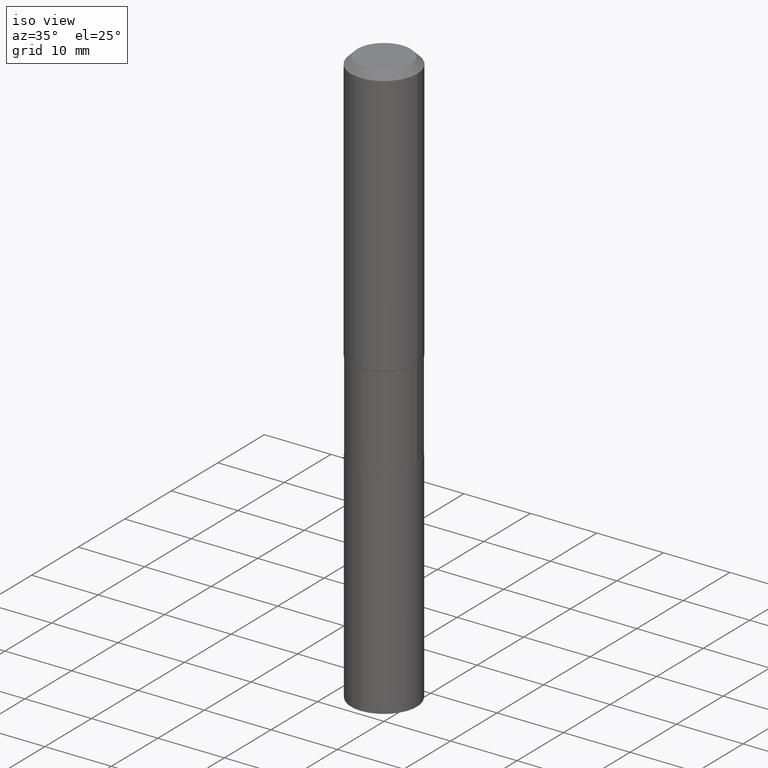
[diagram: clean part render]
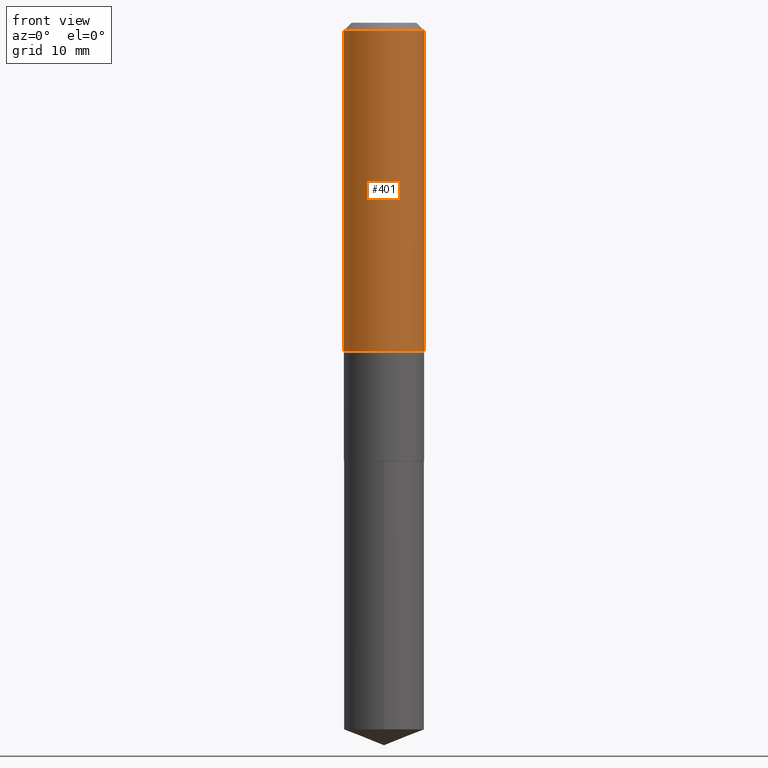
[diagram: tour spotlight — one face highlighted and labeled with its STEP entity id]
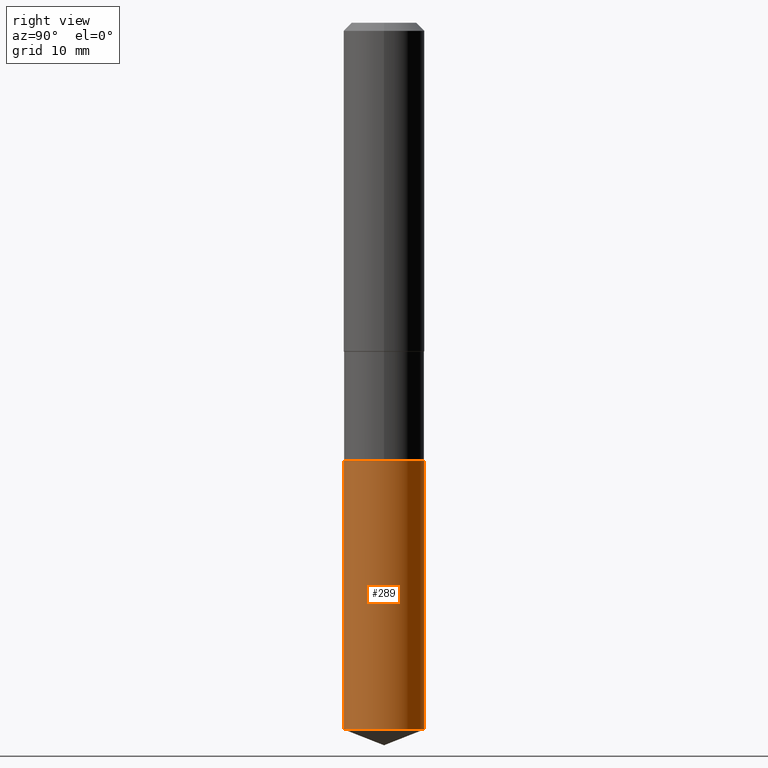
[diagram: tour spotlight — one face highlighted and labeled with its STEP entity id]
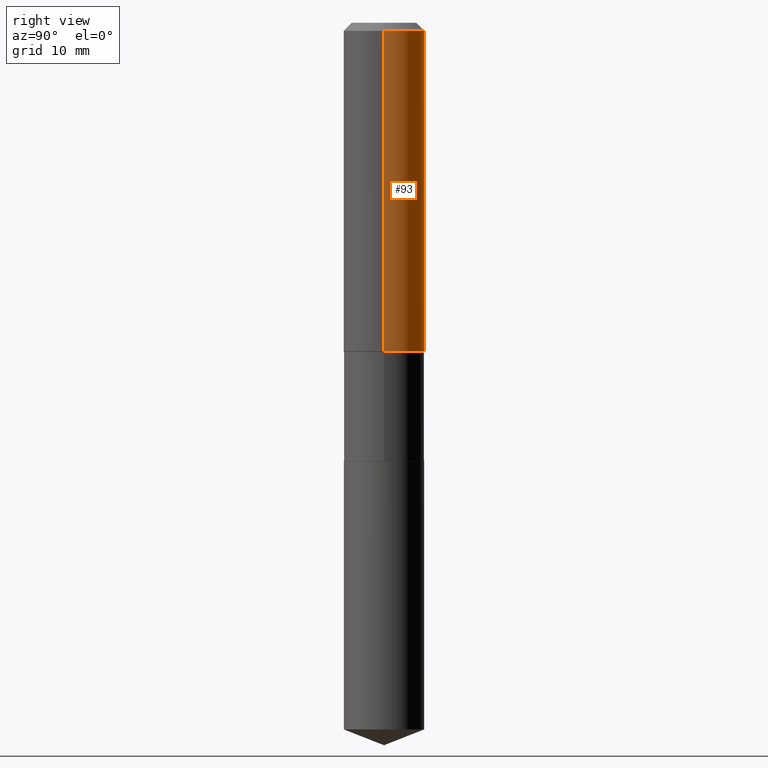
[diagram: tour spotlight — one face highlighted and labeled with its STEP entity id]
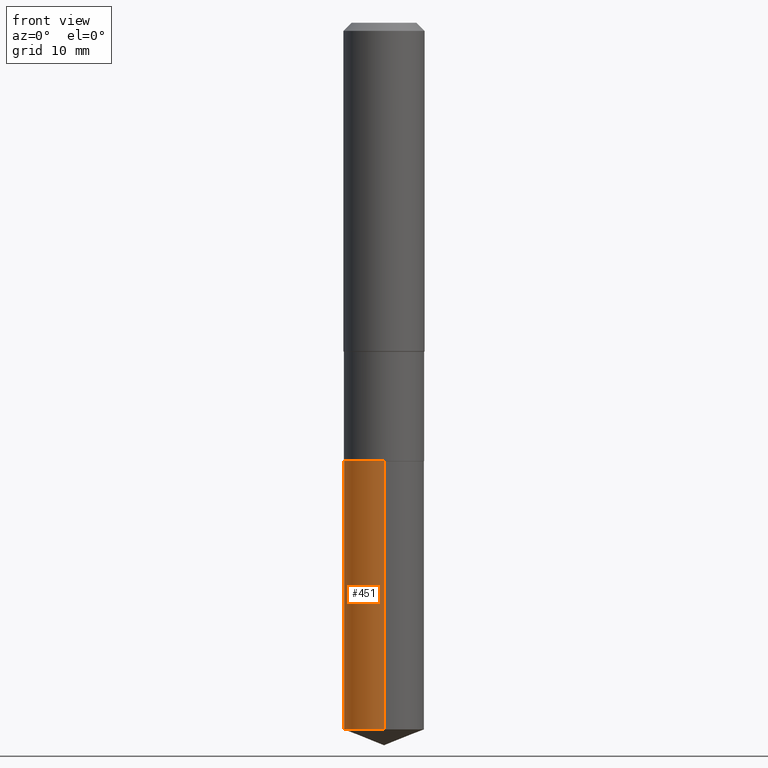
[diagram: tour spotlight — one face highlighted and labeled with its STEP entity id]
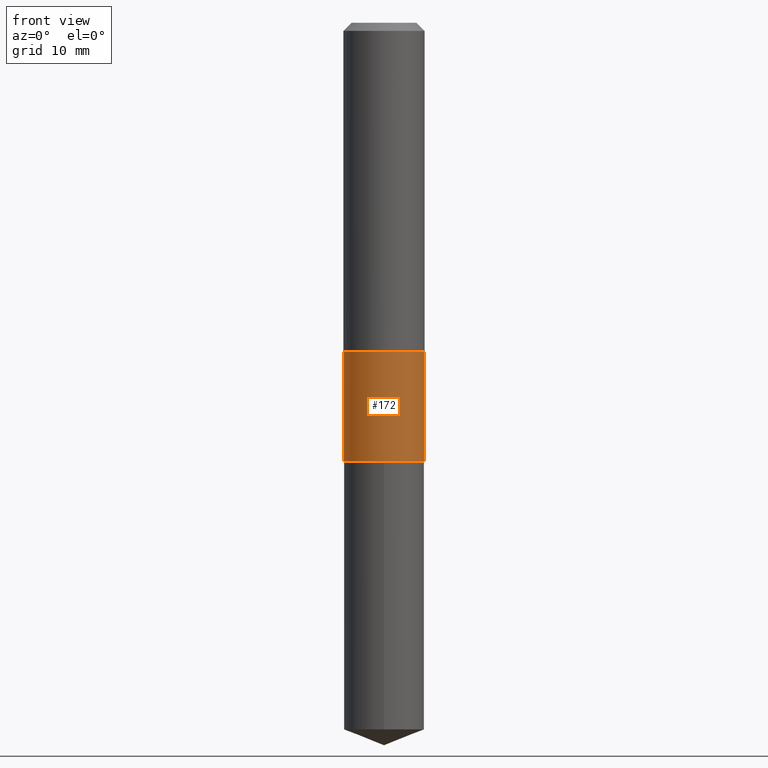
[diagram: tour spotlight — one face highlighted and labeled with its STEP entity id]
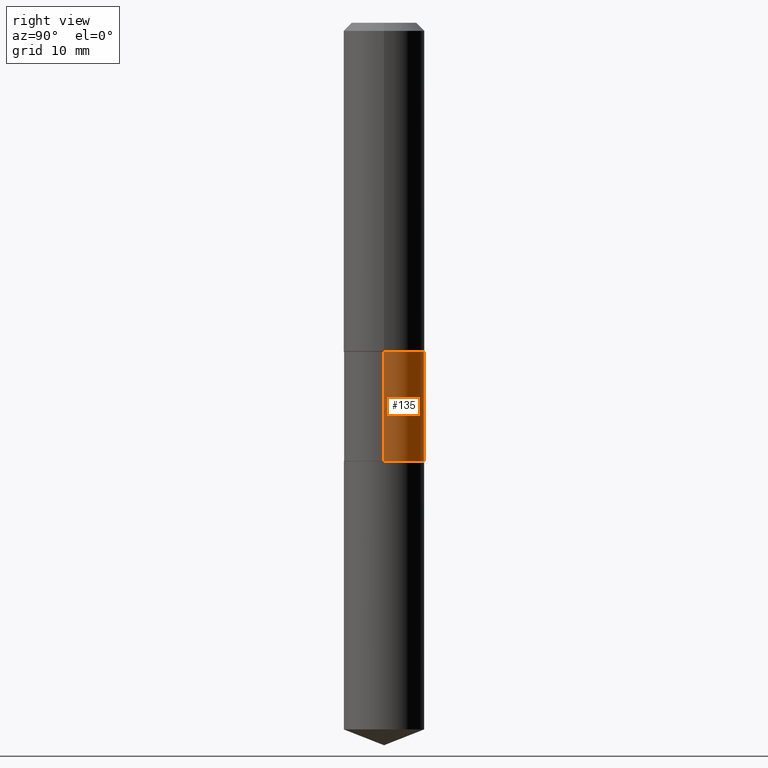
[diagram: tour spotlight — one face highlighted and labeled with its STEP entity id]
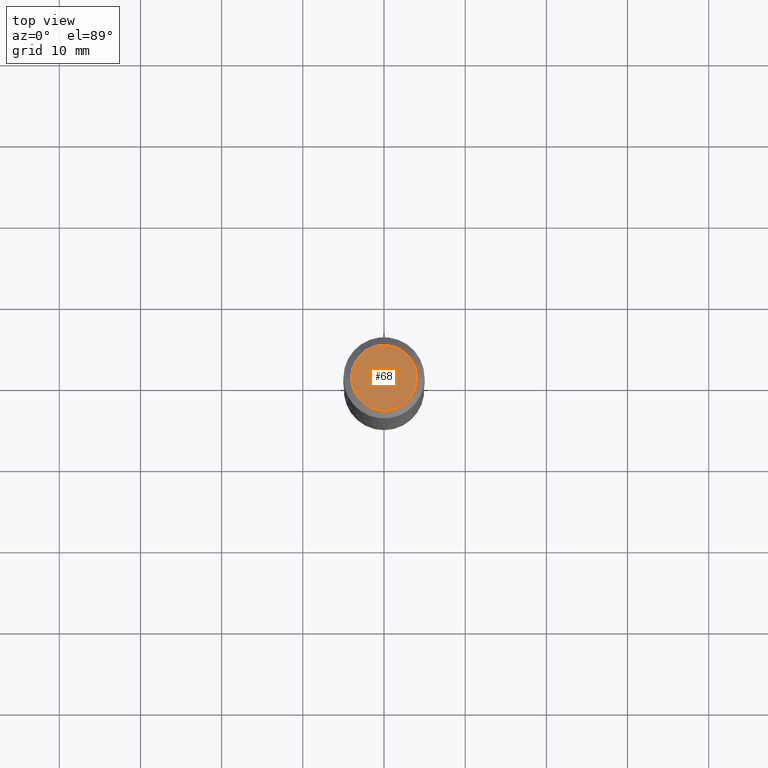
[diagram: tour spotlight — one face highlighted and labeled with its STEP entity id]
A machine part: a face-by-face anatomy tour. The part has 17 B-rep faces; the first image is the clean iso view, then the 7 largest visible faces are spotlighted one at a time (largest first), each with its STEP entity span.

Face 1 — front view, entity #401. In plain terms, the highlighted cylindrical surface (partial cylindrical patch) has radius 5 mm, axis along (-0, 0, 1).
Definition (entity closure, byte-faithful):
#1 = EDGE_CURVE ( 'NONE', #280, #487, #127, .T. ) ;
#9 = DIRECTION ( 'NONE',  ( -2.445468806185136597E-29, 3.491481338843145583E-15, 1.000000000000000000 ) ) ;
#17 = DIRECTION ( 'NONE',  ( -2.445468806185136597E-29, 3.491481338843145583E-15, 1.000000000000000000 ) ) ;
#45 = CARTESIAN_POINT ( 'NONE',  ( -0.1968500000000002192, -4.163400971500313642E-15, -1.593049999999999633 ) ) ;
#58 = CARTESIAN_POINT ( 'NONE',  ( 0.1968500000000000250, -1.512055823412797189E-15, -0.03937000000000029365 ) ) ;
#69 = ORIENTED_EDGE ( 'NONE', *, *, #1, .F. ) ;
#73 = EDGE_CURVE ( 'NONE', #386, #487, #371, .T. ) ;
#85 = CARTESIAN_POINT ( 'NONE',  ( -0.1968500000000000250, -1.451078608233405323E-15, -0.03937000000000029365 ) ) ;
#112 = ORIENTED_EDGE ( 'NONE', *, *, #148, .F. ) ;
#113 = VECTOR ( 'NONE', #156, 39.37007874015748143 ) ;
#127 = CIRCLE ( 'NONE', #443, 0.1968500000000000250 ) ;
#134 = ORIENTED_EDGE ( 'NONE', *, *, #73, .T. ) ;
#140 = DIRECTION ( 'NONE',  ( 1.000000000000000000, -6.982962677686265922E-15, 0.000000000000000000 ) ) ;
#148 = EDGE_CURVE ( 'NONE', #327, #280, #290, .T. ) ;
#153 = CARTESIAN_POINT ( 'NONE',  ( 9.627810689950954155E-31, -1.374596203102556547E-16, -0.03937000000000029365 ) ) ;
#154 = FACE_OUTER_BOUND ( 'NONE', #315, .T. ) ;
#156 = DIRECTION ( 'NONE',  ( -2.445468806185136877E-29, 3.491481338843145188E-15, 1.000000000000000000 ) ) ;
#162 = CARTESIAN_POINT ( 'NONE',  ( 0.000000000000000000, 0.000000000000000000, 0.000000000000000000 ) ) ;
#193 = ORIENTED_EDGE ( 'NONE', *, *, #432, .T. ) ;
#195 = AXIS2_PLACEMENT_3D ( 'NONE', #162, #9, #459 ) ;
#196 = CARTESIAN_POINT ( 'NONE',  ( 0.1968500000000001082, -1.374596203102542397E-15, 9.598753983154305062E-30 ) ) ;
#210 = CARTESIAN_POINT ( 'NONE',  ( 3.895754081693231081E-29, -5.562104346844071429E-15, -1.593049999999999633 ) ) ;
#226 = CARTESIAN_POINT ( 'NONE',  ( -0.1968500000000001082, 1.398703375343757985E-15, -9.682923725166787881E-30 ) ) ;
#228 = CIRCLE ( 'NONE', #422, 0.1968500000000002192 ) ;
#229 = CYLINDRICAL_SURFACE ( 'NONE', #195, 0.1968500000000001082 ) ;
#258 = DIRECTION ( 'NONE',  ( -2.445468806185136597E-29, 3.491481338843145583E-15, 1.000000000000000000 ) ) ;
#280 = VERTEX_POINT ( 'NONE', #85 ) ;
#286 = VECTOR ( 'NONE', #447, 39.37007874015748143 ) ;
#290 = LINE ( 'NONE', #226, #286 ) ;
#295 = DIRECTION ( 'NONE',  ( 1.000000000000000000, -6.982962677686265922E-15, 0.000000000000000000 ) ) ;
#315 = EDGE_LOOP ( 'NONE', ( #112, #193, #134, #69 ) ) ;
#327 = VERTEX_POINT ( 'NONE', #45 ) ;
#369 = CARTESIAN_POINT ( 'NONE',  ( 0.1968500000000002192, -6.936700549946615404E-15, -1.593049999999999633 ) ) ;
#371 = LINE ( 'NONE', #196, #113 ) ;
#386 = VERTEX_POINT ( 'NONE', #369 ) ;
#401 = ADVANCED_FACE ( 'NONE', ( #154 ), #229, .T. ) ;
#422 = AXIS2_PLACEMENT_3D ( 'NONE', #210, #17, #140 ) ;
#432 = EDGE_CURVE ( 'NONE', #327, #386, #228, .T. ) ;
#443 = AXIS2_PLACEMENT_3D ( 'NONE', #153, #258, #295 ) ;
#447 = DIRECTION ( 'NONE',  ( -2.445468806185136877E-29, 3.491481338843145188E-15, 1.000000000000000000 ) ) ;
#459 = DIRECTION ( 'NONE',  ( 1.000000000000000000, -6.982962677686266711E-15, 4.876176775795935793E-29 ) ) ;
#487 = VERTEX_POINT ( 'NONE', #58 ) ;

Face 2 — right view, entity #289. In plain terms, the highlighted cylindrical surface (partial cylindrical patch) has radius 4.9505 mm, axis along (-0, 0, 1).
Definition (entity closure, byte-faithful):
#34 = VERTEX_POINT ( 'NONE', #199 ) ;
#35 = ORIENTED_EDGE ( 'NONE', *, *, #167, .F. ) ;
#51 = DIRECTION ( 'NONE',  ( -2.445600057802036841E-29, 3.491293379057366203E-15, 1.000000000000000000 ) ) ;
#56 = ORIENTED_EDGE ( 'NONE', *, *, #313, .T. ) ;
#70 = VECTOR ( 'NONE', #267, 39.37007874015748143 ) ;
#81 = CARTESIAN_POINT ( 'NONE',  ( -1.360979425881001224E-15, -0.1949000000000074007, -2.125899999999999235 ) ) ;
#82 = CARTESIAN_POINT ( 'NONE',  ( 5.198822135068982087E-29, -7.422540178246643119E-15, -2.125899999999999679 ) ) ;
#95 = VERTEX_POINT ( 'NONE', #416 ) ;
#116 = DIRECTION ( 'NONE',  ( -2.445600057802036841E-29, 3.491293379057366203E-15, 1.000000000000000000 ) ) ;
#121 = CARTESIAN_POINT ( 'NONE',  ( 1.384847791996486861E-15, 0.1948999999999925792, -2.125900000000000567 ) ) ;
#132 = LINE ( 'NONE', #81, #213 ) ;
#150 = AXIS2_PLACEMENT_3D ( 'NONE', #441, #116, #257 ) ;
#167 = EDGE_CURVE ( 'NONE', #484, #95, #352, .T. ) ;
#199 = CARTESIAN_POINT ( 'NONE',  ( -1.360979425880969472E-15, -0.1949000000000119248, -3.427126848302648021 ) ) ;
#202 = DIRECTION ( 'NONE',  ( -6.982962677686266711E-15, -1.000000000000000000, 2.803332984776052637E-15 ) ) ;
#213 = VECTOR ( 'NONE', #266, 39.37007874015748143 ) ;
#224 = VERTEX_POINT ( 'NONE', #372 ) ;
#232 = DIRECTION ( 'NONE',  ( -6.982962677686266711E-15, -1.000000000000000000, 2.803332984776052637E-15 ) ) ;
#237 = FACE_OUTER_BOUND ( 'NONE', #287, .T. ) ;
#250 = ORIENTED_EDGE ( 'NONE', *, *, #413, .F. ) ;
#257 = DIRECTION ( 'NONE',  ( -6.982962677686266711E-15, -1.000000000000000000, 2.803332984776052637E-15 ) ) ;
#260 = CARTESIAN_POINT ( 'NONE',  ( 8.381102590491500625E-29, -1.196550485837736517E-14, -3.427126848302648465 ) ) ;
#266 = DIRECTION ( 'NONE',  ( -2.445600057802036841E-29, 3.491293379057366203E-15, 1.000000000000000000 ) ) ;
#267 = DIRECTION ( 'NONE',  ( -2.445600057802036841E-29, 3.491293379057366203E-15, 1.000000000000000000 ) ) ;
#287 = EDGE_LOOP ( 'NONE', ( #466, #56, #35, #250 ) ) ;
#289 = ADVANCED_FACE ( 'NONE', ( #237 ), #378, .T. ) ;
#313 = EDGE_CURVE ( 'NONE', #224, #95, #460, .T. ) ;
#336 = EDGE_CURVE ( 'NONE', #34, #224, #482, .T. ) ;
#339 = AXIS2_PLACEMENT_3D ( 'NONE', #260, #408, #232 ) ;
#346 = CARTESIAN_POINT ( 'NONE',  ( -1.360979425881001224E-15, -0.1949000000000074007, -2.125899999999999235 ) ) ;
#352 = CIRCLE ( 'NONE', #150, 0.1948999999999999899 ) ;
#372 = CARTESIAN_POINT ( 'NONE',  ( 1.384847791996518810E-15, 0.1948999999999880550, -3.427126848302648909 ) ) ;
#378 = CYLINDRICAL_SURFACE ( 'NONE', #383, 0.1948999999999999899 ) ;
#383 = AXIS2_PLACEMENT_3D ( 'NONE', #82, #51, #202 ) ;
#408 = DIRECTION ( 'NONE',  ( -2.445600057802036841E-29, 3.491293379057366203E-15, 1.000000000000000000 ) ) ;
#413 = EDGE_CURVE ( 'NONE', #34, #484, #132, .T. ) ;
#416 = CARTESIAN_POINT ( 'NONE',  ( 1.384847791996518810E-15, 0.1948999999999925792, -2.125900000000000567 ) ) ;
#441 = CARTESIAN_POINT ( 'NONE',  ( 5.198822135068982087E-29, -7.422540178246643119E-15, -2.125899999999999679 ) ) ;
#460 = LINE ( 'NONE', #121, #70 ) ;
#466 = ORIENTED_EDGE ( 'NONE', *, *, #336, .T. ) ;
#482 = CIRCLE ( 'NONE', #339, 0.1948999999999999899 ) ;
#484 = VERTEX_POINT ( 'NONE', #346 ) ;

Face 3 — right view, entity #93. In plain terms, the highlighted cylindrical surface (partial cylindrical patch) has radius 5 mm, axis along (-0, 0, 1).
Definition (entity closure, byte-faithful):
#7 = EDGE_CURVE ( 'NONE', #487, #280, #344, .T. ) ;
#11 = AXIS2_PLACEMENT_3D ( 'NONE', #171, #307, #15 ) ;
#15 = DIRECTION ( 'NONE',  ( 1.000000000000000000, -6.982962677686265922E-15, 0.000000000000000000 ) ) ;
#45 = CARTESIAN_POINT ( 'NONE',  ( -0.1968500000000002192, -4.163400971500313642E-15, -1.593049999999999633 ) ) ;
#49 = AXIS2_PLACEMENT_3D ( 'NONE', #231, #452, #373 ) ;
#58 = CARTESIAN_POINT ( 'NONE',  ( 0.1968500000000000250, -1.512055823412797189E-15, -0.03937000000000029365 ) ) ;
#73 = EDGE_CURVE ( 'NONE', #386, #487, #371, .T. ) ;
#85 = CARTESIAN_POINT ( 'NONE',  ( -0.1968500000000000250, -1.451078608233405323E-15, -0.03937000000000029365 ) ) ;
#87 = CYLINDRICAL_SURFACE ( 'NONE', #296, 0.1968500000000001082 ) ;
#93 = ADVANCED_FACE ( 'NONE', ( #282 ), #87, .T. ) ;
#113 = VECTOR ( 'NONE', #156, 39.37007874015748143 ) ;
#115 = ORIENTED_EDGE ( 'NONE', *, *, #485, .T. ) ;
#141 = ORIENTED_EDGE ( 'NONE', *, *, #73, .F. ) ;
#148 = EDGE_CURVE ( 'NONE', #327, #280, #290, .T. ) ;
#156 = DIRECTION ( 'NONE',  ( -2.445468806185136877E-29, 3.491481338843145188E-15, 1.000000000000000000 ) ) ;
#171 = CARTESIAN_POINT ( 'NONE',  ( 3.895754081693231081E-29, -5.562104346844071429E-15, -1.593049999999999633 ) ) ;
#196 = CARTESIAN_POINT ( 'NONE',  ( 0.1968500000000001082, -1.374596203102542397E-15, 9.598753983154305062E-30 ) ) ;
#226 = CARTESIAN_POINT ( 'NONE',  ( -0.1968500000000001082, 1.398703375343757985E-15, -9.682923725166787881E-30 ) ) ;
#231 = CARTESIAN_POINT ( 'NONE',  ( 9.627810689950954155E-31, -1.374596203102556547E-16, -0.03937000000000029365 ) ) ;
#236 = CIRCLE ( 'NONE', #11, 0.1968500000000002192 ) ;
#280 = VERTEX_POINT ( 'NONE', #85 ) ;
#282 = FACE_OUTER_BOUND ( 'NONE', #285, .T. ) ;
#285 = EDGE_LOOP ( 'NONE', ( #115, #429, #308, #141 ) ) ;
#286 = VECTOR ( 'NONE', #447, 39.37007874015748143 ) ;
#290 = LINE ( 'NONE', #226, #286 ) ;
#296 = AXIS2_PLACEMENT_3D ( 'NONE', #347, #395, #438 ) ;
#307 = DIRECTION ( 'NONE',  ( -2.445468806185136597E-29, 3.491481338843145583E-15, 1.000000000000000000 ) ) ;
#308 = ORIENTED_EDGE ( 'NONE', *, *, #7, .F. ) ;
#327 = VERTEX_POINT ( 'NONE', #45 ) ;
#344 = CIRCLE ( 'NONE', #49, 0.1968500000000000250 ) ;
#347 = CARTESIAN_POINT ( 'NONE',  ( 0.000000000000000000, 0.000000000000000000, 0.000000000000000000 ) ) ;
#369 = CARTESIAN_POINT ( 'NONE',  ( 0.1968500000000002192, -6.936700549946615404E-15, -1.593049999999999633 ) ) ;
#371 = LINE ( 'NONE', #196, #113 ) ;
#373 = DIRECTION ( 'NONE',  ( 1.000000000000000000, -6.982962677686265922E-15, 0.000000000000000000 ) ) ;
#386 = VERTEX_POINT ( 'NONE', #369 ) ;
#395 = DIRECTION ( 'NONE',  ( -2.445468806185136597E-29, 3.491481338843145583E-15, 1.000000000000000000 ) ) ;
#429 = ORIENTED_EDGE ( 'NONE', *, *, #148, .T. ) ;
#438 = DIRECTION ( 'NONE',  ( 1.000000000000000000, -6.982962677686266711E-15, 4.876176775795935793E-29 ) ) ;
#447 = DIRECTION ( 'NONE',  ( -2.445468806185136877E-29, 3.491481338843145188E-15, 1.000000000000000000 ) ) ;
#452 = DIRECTION ( 'NONE',  ( -2.445468806185136597E-29, 3.491481338843145583E-15, 1.000000000000000000 ) ) ;
#485 = EDGE_CURVE ( 'NONE', #386, #327, #236, .T. ) ;
#487 = VERTEX_POINT ( 'NONE', #58 ) ;

Face 4 — front view, entity #451. In plain terms, the highlighted cylindrical surface (partial cylindrical patch) has radius 4.9505 mm, axis along (-0, 0, 1).
Definition (entity closure, byte-faithful):
#6 = AXIS2_PLACEMENT_3D ( 'NONE', #312, #380, #207 ) ;
#23 = DIRECTION ( 'NONE',  ( -6.982962677686266711E-15, -1.000000000000000000, 2.803332984776052637E-15 ) ) ;
#34 = VERTEX_POINT ( 'NONE', #199 ) ;
#70 = VECTOR ( 'NONE', #267, 39.37007874015748143 ) ;
#81 = CARTESIAN_POINT ( 'NONE',  ( -1.360979425881001224E-15, -0.1949000000000074007, -2.125899999999999235 ) ) ;
#95 = VERTEX_POINT ( 'NONE', #416 ) ;
#98 = DIRECTION ( 'NONE',  ( -6.982962677686266711E-15, -1.000000000000000000, 2.803332984776052637E-15 ) ) ;
#119 = CIRCLE ( 'NONE', #6, 0.1948999999999999899 ) ;
#121 = CARTESIAN_POINT ( 'NONE',  ( 1.384847791996486861E-15, 0.1948999999999925792, -2.125900000000000567 ) ) ;
#132 = LINE ( 'NONE', #81, #213 ) ;
#147 = ORIENTED_EDGE ( 'NONE', *, *, #478, .F. ) ;
#149 = ORIENTED_EDGE ( 'NONE', *, *, #313, .F. ) ;
#157 = CYLINDRICAL_SURFACE ( 'NONE', #241, 0.1948999999999999899 ) ;
#178 = ORIENTED_EDGE ( 'NONE', *, *, #413, .T. ) ;
#181 = DIRECTION ( 'NONE',  ( -2.445600057802036841E-29, 3.491293379057366203E-15, 1.000000000000000000 ) ) ;
#199 = CARTESIAN_POINT ( 'NONE',  ( -1.360979425880969472E-15, -0.1949000000000119248, -3.427126848302648021 ) ) ;
#207 = DIRECTION ( 'NONE',  ( -6.982962677686266711E-15, -1.000000000000000000, 2.803332984776052637E-15 ) ) ;
#209 = ORIENTED_EDGE ( 'NONE', *, *, #420, .T. ) ;
#213 = VECTOR ( 'NONE', #266, 39.37007874015748143 ) ;
#224 = VERTEX_POINT ( 'NONE', #372 ) ;
#241 = AXIS2_PLACEMENT_3D ( 'NONE', #475, #181, #23 ) ;
#266 = DIRECTION ( 'NONE',  ( -2.445600057802036841E-29, 3.491293379057366203E-15, 1.000000000000000000 ) ) ;
#267 = DIRECTION ( 'NONE',  ( -2.445600057802036841E-29, 3.491293379057366203E-15, 1.000000000000000000 ) ) ;
#271 = EDGE_LOOP ( 'NONE', ( #149, #209, #178, #147 ) ) ;
#312 = CARTESIAN_POINT ( 'NONE',  ( 5.198822135068982087E-29, -7.422540178246643119E-15, -2.125899999999999679 ) ) ;
#313 = EDGE_CURVE ( 'NONE', #224, #95, #460, .T. ) ;
#319 = DIRECTION ( 'NONE',  ( -2.445600057802036841E-29, 3.491293379057366203E-15, 1.000000000000000000 ) ) ;
#346 = CARTESIAN_POINT ( 'NONE',  ( -1.360979425881001224E-15, -0.1949000000000074007, -2.125899999999999235 ) ) ;
#372 = CARTESIAN_POINT ( 'NONE',  ( 1.384847791996518810E-15, 0.1948999999999880550, -3.427126848302648909 ) ) ;
#380 = DIRECTION ( 'NONE',  ( -2.445600057802036841E-29, 3.491293379057366203E-15, 1.000000000000000000 ) ) ;
#413 = EDGE_CURVE ( 'NONE', #34, #484, #132, .T. ) ;
#416 = CARTESIAN_POINT ( 'NONE',  ( 1.384847791996518810E-15, 0.1948999999999925792, -2.125900000000000567 ) ) ;
#420 = EDGE_CURVE ( 'NONE', #224, #34, #463, .T. ) ;
#425 = CARTESIAN_POINT ( 'NONE',  ( 8.381102590491500625E-29, -1.196550485837736517E-14, -3.427126848302648465 ) ) ;
#439 = FACE_OUTER_BOUND ( 'NONE', #271, .T. ) ;
#451 = ADVANCED_FACE ( 'NONE', ( #439 ), #157, .T. ) ;
#460 = LINE ( 'NONE', #121, #70 ) ;
#463 = CIRCLE ( 'NONE', #489, 0.1948999999999999899 ) ;
#475 = CARTESIAN_POINT ( 'NONE',  ( 5.198822135068982087E-29, -7.422540178246643119E-15, -2.125899999999999679 ) ) ;
#478 = EDGE_CURVE ( 'NONE', #95, #484, #119, .T. ) ;
#484 = VERTEX_POINT ( 'NONE', #346 ) ;
#489 = AXIS2_PLACEMENT_3D ( 'NONE', #425, #319, #98 ) ;

Face 5 — front view, entity #172. In plain terms, the highlighted cylindrical surface (partial cylindrical patch) has radius 4.9505 mm, axis along (-0, 0, 1).
Definition (entity closure, byte-faithful):
#4 = DIRECTION ( 'NONE',  ( -2.445468806185136877E-29, 3.491481338843145188E-15, 1.000000000000000000 ) ) ;
#19 = AXIS2_PLACEMENT_3D ( 'NONE', #423, #474, #337 ) ;
#24 = VERTEX_POINT ( 'NONE', #122 ) ;
#47 = CARTESIAN_POINT ( 'NONE',  ( -0.1948999999999999344, 1.384847791996434796E-15, -9.587004490906808522E-30 ) ) ;
#63 = AXIS2_PLACEMENT_3D ( 'NONE', #283, #74, #434 ) ;
#74 = DIRECTION ( 'NONE',  ( -2.445468806185136597E-29, 3.491481338843145583E-15, 1.000000000000000000 ) ) ;
#102 = EDGE_CURVE ( 'NONE', #142, #388, #160, .T. ) ;
#122 = CARTESIAN_POINT ( 'NONE',  ( 0.1948999999999999067, -6.929892161335869568E-15, -1.594999999999999751 ) ) ;
#126 = DIRECTION ( 'NONE',  ( 1.000000000000000000, -6.982962677686267499E-15, 0.000000000000000000 ) ) ;
#130 = VECTOR ( 'NONE', #4, 39.37007874015748143 ) ;
#142 = VERTEX_POINT ( 'NONE', #403 ) ;
#160 = CIRCLE ( 'NONE', #19, 0.1948999999999999899 ) ;
#169 = VECTOR ( 'NONE', #414, 39.37007874015748143 ) ;
#172 = ADVANCED_FACE ( 'NONE', ( #217 ), #405, .T. ) ;
#217 = FACE_OUTER_BOUND ( 'NONE', #277, .T. ) ;
#219 = ORIENTED_EDGE ( 'NONE', *, *, #102, .T. ) ;
#252 = CARTESIAN_POINT ( 'NONE',  ( 0.1948999999999999899, -8.781773863458275496E-15, -2.125399999999999956 ) ) ;
#253 = ORIENTED_EDGE ( 'NONE', *, *, #262, .T. ) ;
#261 = CARTESIAN_POINT ( 'NONE',  ( 0.1948999999999999344, -1.360979425881052894E-15, 9.503668536026277414E-30 ) ) ;
#262 = EDGE_CURVE ( 'NONE', #388, #24, #332, .T. ) ;
#276 = VERTEX_POINT ( 'NONE', #449 ) ;
#277 = EDGE_LOOP ( 'NONE', ( #356, #219, #253, #381 ) ) ;
#283 = CARTESIAN_POINT ( 'NONE',  ( 0.000000000000000000, 0.000000000000000000, 0.000000000000000000 ) ) ;
#297 = AXIS2_PLACEMENT_3D ( 'NONE', #299, #409, #126 ) ;
#299 = CARTESIAN_POINT ( 'NONE',  ( 3.900522745865292334E-29, -5.568912735454817265E-15, -1.594999999999999751 ) ) ;
#332 = LINE ( 'NONE', #261, #169 ) ;
#337 = DIRECTION ( 'NONE',  ( 1.000000000000000000, -6.982962677686269866E-15, 0.000000000000000000 ) ) ;
#343 = EDGE_CURVE ( 'NONE', #142, #276, #375, .T. ) ;
#356 = ORIENTED_EDGE ( 'NONE', *, *, #343, .F. ) ;
#375 = LINE ( 'NONE', #47, #130 ) ;
#381 = ORIENTED_EDGE ( 'NONE', *, *, #402, .F. ) ;
#388 = VERTEX_POINT ( 'NONE', #252 ) ;
#390 = CIRCLE ( 'NONE', #297, 0.1948999999999999067 ) ;
#402 = EDGE_CURVE ( 'NONE', #276, #24, #390, .T. ) ;
#403 = CARTESIAN_POINT ( 'NONE',  ( -0.1948999999999999899, -5.110005794519583264E-15, -2.125399999999999956 ) ) ;
#405 = CYLINDRICAL_SURFACE ( 'NONE', #63, 0.1948999999999999344 ) ;
#409 = DIRECTION ( 'NONE',  ( -2.445468806185136597E-29, 3.491481338843145583E-15, 1.000000000000000000 ) ) ;
#414 = DIRECTION ( 'NONE',  ( -2.445468806185136877E-29, 3.491481338843145188E-15, 1.000000000000000000 ) ) ;
#423 = CARTESIAN_POINT ( 'NONE',  ( 5.197599400665889285E-29, -7.420794437577220826E-15, -2.125399999999999956 ) ) ;
#434 = DIRECTION ( 'NONE',  ( 1.000000000000000000, -6.982962677686266711E-15, 4.876176775795936914E-29 ) ) ;
#449 = CARTESIAN_POINT ( 'NONE',  ( -0.1948999999999999067, -5.110005794519583264E-15, -1.594999999999999751 ) ) ;
#474 = DIRECTION ( 'NONE',  ( -2.445468806185136597E-29, 3.491481338843145583E-15, 1.000000000000000000 ) ) ;

Face 6 — right view, entity #135. In plain terms, the highlighted cylindrical surface (partial cylindrical patch) has radius 4.9505 mm, axis along (-0, 0, 1).
Definition (entity closure, byte-faithful):
#4 = DIRECTION ( 'NONE',  ( -2.445468806185136877E-29, 3.491481338843145188E-15, 1.000000000000000000 ) ) ;
#13 = CARTESIAN_POINT ( 'NONE',  ( 5.197599400665889285E-29, -7.420794437577220826E-15, -2.125399999999999956 ) ) ;
#24 = VERTEX_POINT ( 'NONE', #122 ) ;
#37 = FACE_OUTER_BOUND ( 'NONE', #218, .T. ) ;
#39 = AXIS2_PLACEMENT_3D ( 'NONE', #263, #52, #78 ) ;
#47 = CARTESIAN_POINT ( 'NONE',  ( -0.1948999999999999344, 1.384847791996434796E-15, -9.587004490906808522E-30 ) ) ;
#52 = DIRECTION ( 'NONE',  ( -2.445468806185136597E-29, 3.491481338843145583E-15, 1.000000000000000000 ) ) ;
#78 = DIRECTION ( 'NONE',  ( 1.000000000000000000, -6.982962677686267499E-15, 0.000000000000000000 ) ) ;
#100 = DIRECTION ( 'NONE',  ( -2.445468806185136597E-29, 3.491481338843145583E-15, 1.000000000000000000 ) ) ;
#106 = CIRCLE ( 'NONE', #247, 0.1948999999999999899 ) ;
#122 = CARTESIAN_POINT ( 'NONE',  ( 0.1948999999999999067, -6.929892161335869568E-15, -1.594999999999999751 ) ) ;
#130 = VECTOR ( 'NONE', #4, 39.37007874015748143 ) ;
#135 = ADVANCED_FACE ( 'NONE', ( #37 ), #480, .T. ) ;
#142 = VERTEX_POINT ( 'NONE', #403 ) ;
#143 = CARTESIAN_POINT ( 'NONE',  ( 0.000000000000000000, 0.000000000000000000, 0.000000000000000000 ) ) ;
#152 = DIRECTION ( 'NONE',  ( 1.000000000000000000, -6.982962677686266711E-15, 4.876176775795936914E-29 ) ) ;
#169 = VECTOR ( 'NONE', #414, 39.37007874015748143 ) ;
#177 = DIRECTION ( 'NONE',  ( 1.000000000000000000, -6.982962677686269866E-15, 0.000000000000000000 ) ) ;
#208 = EDGE_CURVE ( 'NONE', #24, #276, #389, .T. ) ;
#218 = EDGE_LOOP ( 'NONE', ( #273, #397, #318, #437 ) ) ;
#222 = DIRECTION ( 'NONE',  ( -2.445468806185136597E-29, 3.491481338843145583E-15, 1.000000000000000000 ) ) ;
#247 = AXIS2_PLACEMENT_3D ( 'NONE', #13, #100, #177 ) ;
#252 = CARTESIAN_POINT ( 'NONE',  ( 0.1948999999999999899, -8.781773863458275496E-15, -2.125399999999999956 ) ) ;
#261 = CARTESIAN_POINT ( 'NONE',  ( 0.1948999999999999344, -1.360979425881052894E-15, 9.503668536026277414E-30 ) ) ;
#262 = EDGE_CURVE ( 'NONE', #388, #24, #332, .T. ) ;
#263 = CARTESIAN_POINT ( 'NONE',  ( 3.900522745865292334E-29, -5.568912735454817265E-15, -1.594999999999999751 ) ) ;
#273 = ORIENTED_EDGE ( 'NONE', *, *, #457, .T. ) ;
#276 = VERTEX_POINT ( 'NONE', #449 ) ;
#318 = ORIENTED_EDGE ( 'NONE', *, *, #208, .F. ) ;
#332 = LINE ( 'NONE', #261, #169 ) ;
#343 = EDGE_CURVE ( 'NONE', #142, #276, #375, .T. ) ;
#375 = LINE ( 'NONE', #47, #130 ) ;
#376 = AXIS2_PLACEMENT_3D ( 'NONE', #143, #222, #152 ) ;
#388 = VERTEX_POINT ( 'NONE', #252 ) ;
#389 = CIRCLE ( 'NONE', #39, 0.1948999999999999067 ) ;
#397 = ORIENTED_EDGE ( 'NONE', *, *, #343, .T. ) ;
#403 = CARTESIAN_POINT ( 'NONE',  ( -0.1948999999999999899, -5.110005794519583264E-15, -2.125399999999999956 ) ) ;
#414 = DIRECTION ( 'NONE',  ( -2.445468806185136877E-29, 3.491481338843145188E-15, 1.000000000000000000 ) ) ;
#437 = ORIENTED_EDGE ( 'NONE', *, *, #262, .F. ) ;
#449 = CARTESIAN_POINT ( 'NONE',  ( -0.1948999999999999067, -5.110005794519583264E-15, -1.594999999999999751 ) ) ;
#457 = EDGE_CURVE ( 'NONE', #388, #142, #106, .T. ) ;
#480 = CYLINDRICAL_SURFACE ( 'NONE', #376, 0.1948999999999999344 ) ;

Face 7 — top view, entity #68. In plain terms, the highlighted planar face has unit normal (0, -0, -1).
Definition (entity closure, byte-faithful):
#28 = DIRECTION ( 'NONE',  ( 1.000000000000000000, -6.982962677686265922E-15, 4.876223630392693006E-29 ) ) ;
#42 = DIRECTION ( 'NONE',  ( -2.445468806185136597E-29, 3.491481338843145583E-15, 1.000000000000000000 ) ) ;
#50 = DIRECTION ( 'NONE',  ( 1.000000000000000000, -6.982962677686265922E-15, 4.876223630392693006E-29 ) ) ;
#62 = ORIENTED_EDGE ( 'NONE', *, *, #298, .T. ) ;
#68 = ADVANCED_FACE ( 'NONE', ( #330 ), #448, .F. ) ;
#71 = VERTEX_POINT ( 'NONE', #227 ) ;
#75 = DIRECTION ( 'NONE',  ( -1.000000000000000000, 6.982962677686265922E-15, -4.876176775795935793E-29 ) ) ;
#83 = AXIS2_PLACEMENT_3D ( 'NONE', #279, #42, #28 ) ;
#90 = DIRECTION ( 'NONE',  ( -2.445468806185136597E-29, 3.491481338843145583E-15, 1.000000000000000000 ) ) ;
#117 = DIRECTION ( 'NONE',  ( 2.438088387897960049E-29, -3.491481338843145188E-15, -1.000000000000000000 ) ) ;
#163 = EDGE_CURVE ( 'NONE', #284, #71, #320, .T. ) ;
#168 = AXIS2_PLACEMENT_3D ( 'NONE', #406, #117, #75 ) ;
#173 = AXIS2_PLACEMENT_3D ( 'NONE', #234, #90, #50 ) ;
#200 = CIRCLE ( 'NONE', #173, 0.1574800000000000089 ) ;
#215 = ORIENTED_EDGE ( 'NONE', *, *, #163, .T. ) ;
#223 = EDGE_LOOP ( 'NONE', ( #62, #215 ) ) ;
#227 = CARTESIAN_POINT ( 'NONE',  ( -0.1574800000000000089, 1.168406772637159618E-15, 3.855188123707939751E-18 ) ) ;
#234 = CARTESIAN_POINT ( 'NONE',  ( -9.427742298522567634E-47, 1.346031739168368355E-32, 3.855188123715870730E-18 ) ) ;
#279 = CARTESIAN_POINT ( 'NONE',  ( -9.427742298522567634E-47, 1.346031739168368355E-32, 3.855188123715870730E-18 ) ) ;
#284 = VERTEX_POINT ( 'NONE', #411 ) ;
#298 = EDGE_CURVE ( 'NONE', #71, #284, #200, .T. ) ;
#320 = CIRCLE ( 'NONE', #83, 0.1574800000000000089 ) ;
#330 = FACE_OUTER_BOUND ( 'NONE', #223, .T. ) ;
#406 = CARTESIAN_POINT ( 'NONE',  ( -4.713871149261283817E-47, 6.730158695841841775E-33, 1.927594061857935365E-18 ) ) ;
#411 = CARTESIAN_POINT ( 'NONE',  ( 0.1574800000000000089, -1.284169937930321189E-15, 3.855188123724205385E-18 ) ) ;
#448 = PLANE ( 'NONE',  #168 ) ;